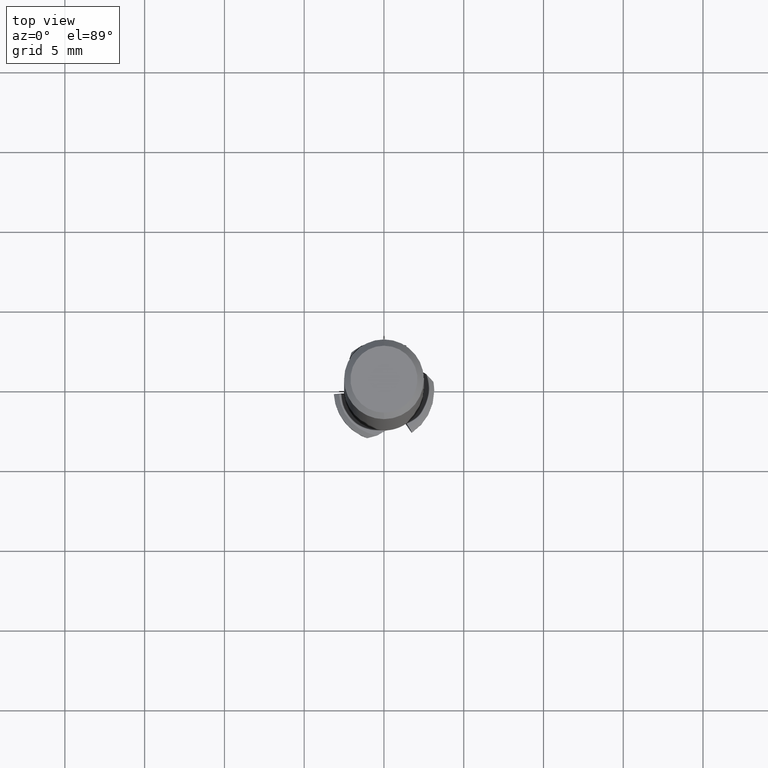
[diagram: clean part render]
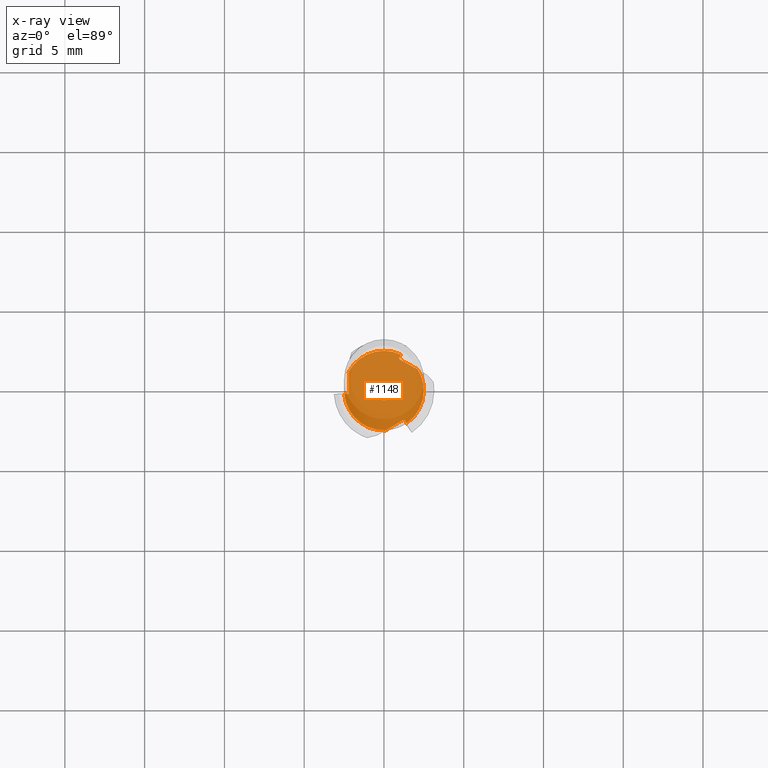
[diagram: x-ray — body ghosted, one internal face saturated and labeled with its STEP entity id]
A machine part, top view, then the same camera in x-ray: the body is ghosted and one INTERNAL B-rep face — a face not visible from any outside direction — is saturated and labeled: STEP entity #1148.
In plain terms, the highlighted planar face has unit normal (0, 0, -1).
Its self-contained STEP definition (entity closure, byte-faithful):
#478=EDGE_CURVE('',#674,#900,#1343,.T.);
#484=EDGE_CURVE('',#642,#608,#1349,.T.);
#492=VERTEX_POINT('',#1357);
#544=VERTEX_POINT('',#1415);
#550=EDGE_CURVE('',#492,#664,#1422,.T.);
#560=VERTEX_POINT('',#1433);
#568=VERTEX_POINT('',#1441);
#608=VERTEX_POINT('',#1484);
#642=VERTEX_POINT('',#1523);
#652=EDGE_CURVE('',#664,#642,#1535,.T.);
#664=VERTEX_POINT('',#1547);
#674=VERTEX_POINT('',#1558);
#722=VERTEX_POINT('',#1610);
#764=EDGE_CURVE('',#864,#560,#1657,.T.);
#780=VERTEX_POINT('',#1674);
#864=VERTEX_POINT('',#1765);
#900=VERTEX_POINT('',#1804);
#960=EDGE_CURVE('',#544,#864,#1866,.T.);
#972=EDGE_CURVE('',#608,#1158,#1880,.T.);
#988=EDGE_CURVE('',#568,#780,#1897,.T.);
#990=EDGE_CURVE('',#780,#492,#1899,.T.);
#1006=EDGE_CURVE('',#722,#544,#1915,.T.);
#1054=VERTEX_POINT('',#1967);
#1096=EDGE_CURVE('',#900,#674,#2010,.T.);
#1120=VERTEX_POINT('',#2037);
#1122=EDGE_CURVE('',#1054,#568,#2039,.T.);
#1148=ADVANCED_FACE('',(#2068,#2069),#2070,.T.);
#1150=EDGE_CURVE('',#560,#1054,#2072,.T.);
#1158=VERTEX_POINT('',#2080);
#1208=EDGE_CURVE('',#1120,#722,#2138,.T.);
#1280=EDGE_CURVE('',#1158,#1120,#2216,.T.);
#1343=CIRCLE('',#2324,0.6);
#1349=ELLIPSE('',#2348,0.0866553284631952,0.075);
#1357=CARTESIAN_POINT('',(0.095876214145413,-2.49816087383522,-41.64));
#1415=CARTESIAN_POINT('',(0.992999660924822,1.95838883534652,-41.64));
#1422=CIRCLE('',#2565,2.5);
#1433=CARTESIAN_POINT('',(2.5,3.06151588455594E-016,-41.64));
#1441=CARTESIAN_POINT('',(1.30984730618172,-1.87411665909694,-41.64));
#1484=CARTESIAN_POINT('',(-2.19251431236031,-0.119231485363025,-41.64));
#1523=CARTESIAN_POINT('',(-2.27795628952443,-0.197302712683511,-41.64));
#1535=LINE('',#2747,#2748);
#1547=CARTESIAN_POINT('',(-2.49160028507162,-0.20476332540531,-41.64));
#1558=CARTESIAN_POINT('',(0.6,7.34763812293426E-017,-41.64));
#1610=CARTESIAN_POINT('',(0.968108983342709,2.07141937178046,-41.64));
#1657=CIRCLE('',#3023,2.5);
#1674=CARTESIAN_POINT('',(1.19951465143549,-1.83915734998348,-41.64));
#1765=CARTESIAN_POINT('',(2.11553267240892,1.33211167398622,-41.64));
#1804=CARTESIAN_POINT('',(-0.6,0.0,-41.64));
#1866=LINE('',#3445,#3446);
#1880=LINE('',#3463,#3464);
#1897=ELLIPSE('',#3492,0.0866553284631952,0.075);
#1899=LINE('',#3495,#3496);
#1915=ELLIPSE('',#3528,0.0866553284631952,0.075);
#1967=CARTESIAN_POINT('',(1.42313038410019,-2.05540748024591,-41.64));
#2010=CIRCLE('',#3810,0.6);
#2037=CARTESIAN_POINT('',(1.06846990097143,2.26017080565123,-41.64));
#2039=LINE('',#3873,#3874);
#2068=FACE_OUTER_BOUND('',#3931,.T.);
#2069=FACE_BOUND('',#3932,.T.);
#2070=PLANE('',#3933);
#2072=CIRCLE('',#3936,2.5);
#2080=CARTESIAN_POINT('',(-2.21140888655434,1.166049199849,-41.64));
#2138=LINE('',#4046,#4047);
#2216=CIRCLE('',#4205,2.5);
#2324=AXIS2_PLACEMENT_3D('',#4240,#4241,#4242);
#2348=AXIS2_PLACEMENT_3D('',#4246,#4247,#4248);
#2565=AXIS2_PLACEMENT_3D('',#4336,#4337,#4338);
#2747=CARTESIAN_POINT('',(-0.896096352088528,-0.149047100338431,-41.64));
#2748=VECTOR('',#4474,1.0);
#3023=AXIS2_PLACEMENT_3D('',#4612,#4613,#4614);
#3445=CARTESIAN_POINT('',(5.97513002897245,-0.821212684169241,-41.64));
#3446=VECTOR('',#4818,1.0);
#3463=CARTESIAN_POINT('',(-2.28648970131379,6.27333132483134,-41.64));
#3464=VECTOR('',#4836,1.0);
#3492=AXIS2_PLACEMENT_3D('',#4845,#4846,#4847);
#3495=CARTESIAN_POINT('',(-4.85114032765866,-5.45211864066209,-41.64));
#3496=VECTOR('',#4848,1.0);
#3528=AXIS2_PLACEMENT_3D('',#4859,#4860,#4861);
#3810=AXIS2_PLACEMENT_3D('',#4941,#4942,#4943);
#3873=CARTESIAN_POINT('',(-0.0509416794163901,0.303600941294465,-41.64));
#3874=VECTOR('',#4974,1.0);
#3931=EDGE_LOOP('',(#5015,#5016,#5017,#5018,#5019,#5020,#5021,#5022,#5023,#5024,#5025,#5026,#5027));
#3932=EDGE_LOOP('',(#5028,#5029));
#3933=AXIS2_PLACEMENT_3D('',#5030,#5031,#5032);
#3936=AXIS2_PLACEMENT_3D('',#5033,#5034,#5035);
#4046=CARTESIAN_POINT('',(-0.215461968495082,-0.154553840956027,-41.64));
#4047=VECTOR('',#5112,1.0);
#4205=AXIS2_PLACEMENT_3D('',#5212,#5213,#5214);
#4240=CARTESIAN_POINT('',(0.0,0.0,-41.64));
#4241=DIRECTION('',(0.0,0.0,-1.0));
#4242=DIRECTION('',(-1.0,0.0,0.0));
#4246=CARTESIAN_POINT('',(-2.27906415470013,-0.122249940677297,-41.64));
#4247=DIRECTION('',(0.0,0.0,1.0));
#4248=DIRECTION('',(-0.995464215361803,-0.0951367223216674,0.0));
#4336=CARTESIAN_POINT('',(0.0,0.0,-41.64));
#4337=DIRECTION('',(0.0,0.0,-1.0));
#4338=DIRECTION('',(-1.0,0.0,0.0));
#4474=DIRECTION('',(0.999390827019096,0.0348994967025007,0.0));
#4612=CARTESIAN_POINT('',(0.0,0.0,-41.64));
#4613=DIRECTION('',(0.0,0.0,-1.0));
#4614=DIRECTION('',(-1.0,0.0,0.0));
#4818=DIRECTION('',(0.873281414560001,-0.487216144010113,0.0));
#4836=DIRECTION('',(-0.0146991494333453,0.999891961666827,0.0));
#4845=CARTESIAN_POINT('',(1.24540363158775,-1.91260248448617,-41.64));
#4846=DIRECTION('',(-0.0,0.0,1.0));
#4847=DIRECTION('',(0.580122926044252,-0.81452893790083,0.0));
#4848=DIRECTION('',(-0.858582265126656,-0.512675817656715,-0.0));
#4859=CARTESIAN_POINT('',(1.03366052311238,2.03485242516347,-41.64));
#4860=DIRECTION('',(0.0,-0.0,1.0));
#4861=DIRECTION('',(0.415341289317551,0.909665660222499,0.0));
#4941=CARTESIAN_POINT('',(0.0,0.0,-41.64));
#4942=DIRECTION('',(0.0,0.0,-1.0));
#4943=DIRECTION('',(-1.0,0.0,0.0));
#4974=DIRECTION('',(-0.529919264233205,0.848048096156426,0.0));
#5015=ORIENTED_EDGE('',*,*,#990,.T.);
#5016=ORIENTED_EDGE('',*,*,#550,.T.);
#5017=ORIENTED_EDGE('',*,*,#652,.T.);
#5018=ORIENTED_EDGE('',*,*,#484,.T.);
#5019=ORIENTED_EDGE('',*,*,#972,.T.);
#5020=ORIENTED_EDGE('',*,*,#1280,.T.);
#5021=ORIENTED_EDGE('',*,*,#1208,.T.);
#5022=ORIENTED_EDGE('',*,*,#1006,.T.);
#5023=ORIENTED_EDGE('',*,*,#960,.T.);
#5024=ORIENTED_EDGE('',*,*,#764,.T.);
#5025=ORIENTED_EDGE('',*,*,#1150,.T.);
#5026=ORIENTED_EDGE('',*,*,#1122,.T.);
#5027=ORIENTED_EDGE('',*,*,#988,.T.);
#5028=ORIENTED_EDGE('',*,*,#1096,.F.);
#5029=ORIENTED_EDGE('',*,*,#478,.F.);
#5030=CARTESIAN_POINT('',(-1.55,0.0,-41.64));
#5031=DIRECTION('',(0.0,0.0,-1.0));
#5032=DIRECTION('',(-1.0,0.0,0.0));
#5033=CARTESIAN_POINT('',(0.0,0.0,-41.64));
#5034=DIRECTION('',(0.0,0.0,-1.0));
#5035=DIRECTION('',(-1.0,0.0,0.0));
#5112=DIRECTION('',(-0.469471562785891,-0.882947592858927,-0.0));
#5212=CARTESIAN_POINT('',(0.0,0.0,-41.64));
#5213=DIRECTION('',(0.0,0.0,-1.0));
#5214=DIRECTION('',(-1.0,0.0,0.0));